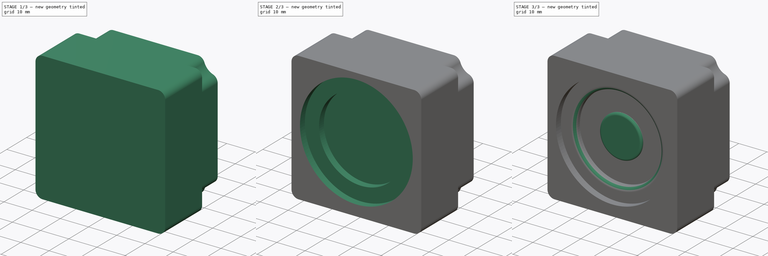
[diagram: build sequence overview — one tinted view per stage of 3, left to right]
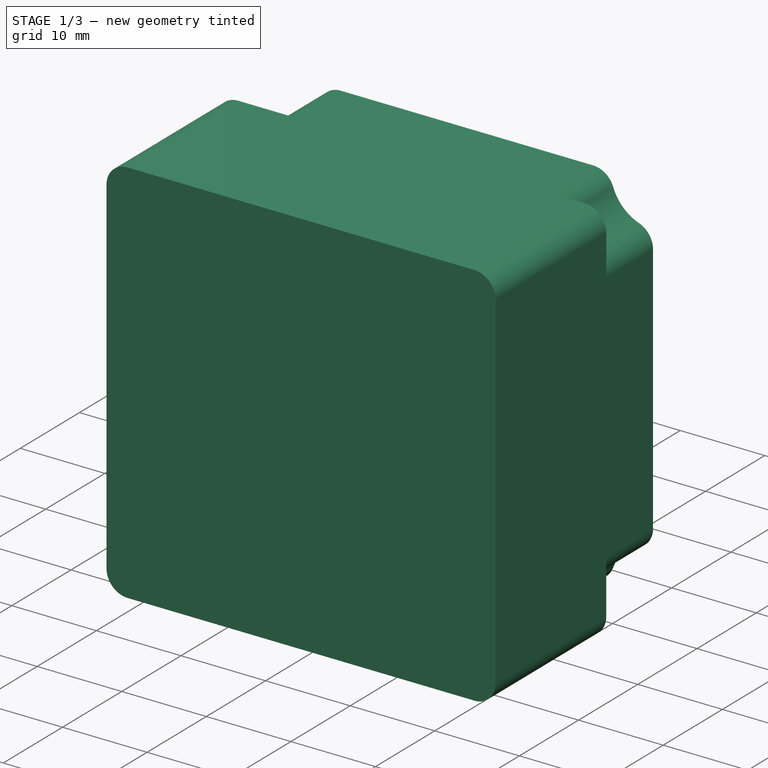
[diagram: stage 1 of 3 — iso view after this stage's code; geometry added in this stage tinted green]
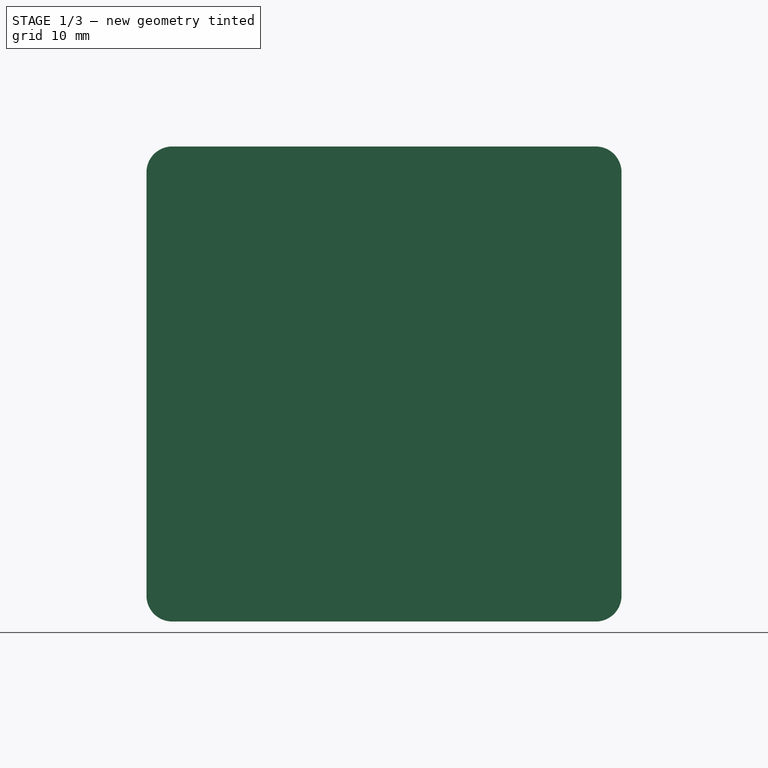
[diagram: stage 1 of 3 — front view after this stage's code; geometry added in this stage tinted green]
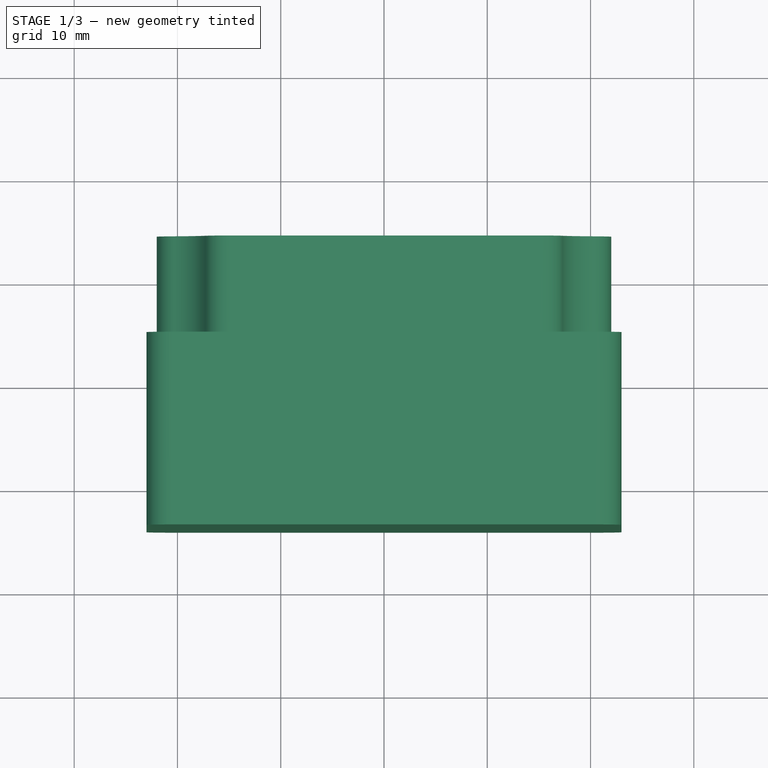
[diagram: stage 1 of 3 — top view after this stage's code; geometry added in this stage tinted green]
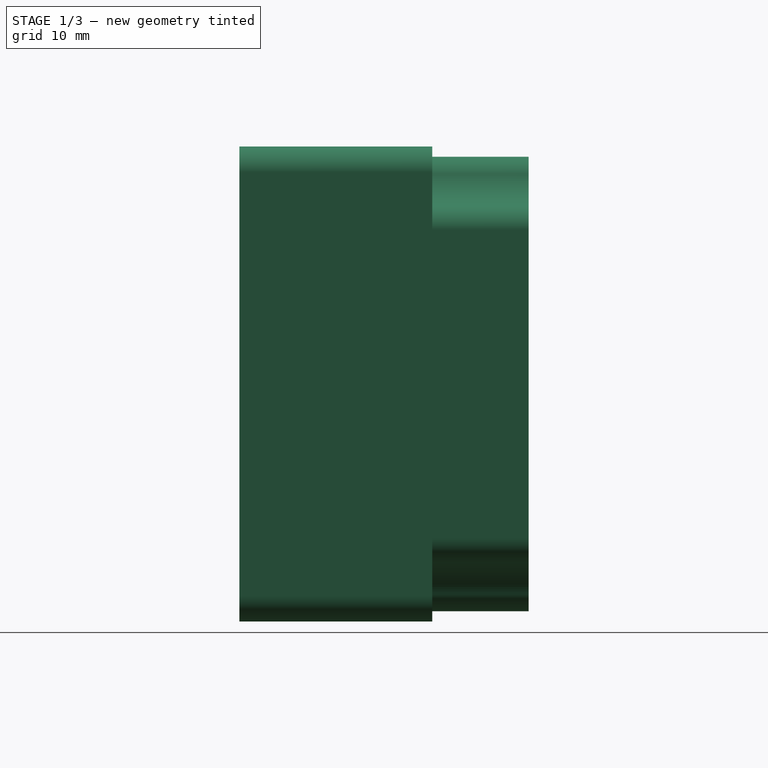
[diagram: stage 1 of 3 — right view after this stage's code; geometry added in this stage tinted green]
FCSTD DOCUMENT  (FreeCAD 1.0R39109 (Git))
Label: mini_speaker
License: All rights reserved
LicenseURL: http://en.wikipedia.org/wiki/All_rights_reserved
objects: Sketcher::SketchObject×5, PartDesign::Pocket×3, PartDesign::Fillet×3, PartDesign::Pad×2, PartDesign::Body×1
note: 35 computed .brp shape members not serialized (recipe doc carries the construction recipe); baked Part::Feature solids carry a one-line shape summary decoded from their .brp

FEATURE [Sketcher::SketchObject] Sketch
  ArcFitTolerance = 1e-06
  AttachmentSupport = -> [XY_Plane]
  FullyConstrained = true
  MakeInternals = false
  MapMode = 5
  sketch-geometry (5):
    g0: LineSegment StartX=-23 StartY=14 StartZ=0 EndX=-23 EndY=-14 EndZ=0
    g1: LineSegment StartX=-23 StartY=-14 StartZ=0 EndX=23 EndY=-14 EndZ=0
    g2: LineSegment StartX=23 StartY=-14 StartZ=0 EndX=23 EndY=14 EndZ=0
    g3: LineSegment StartX=23 StartY=14 StartZ=0 EndX=-23 EndY=14 EndZ=0
    g4: GeomPoint [constr] X=0 Y=0 Z=0
  constraints (12):
    c: Coincident(g0,g1)
    c: Coincident(g1,g2)
    c: Coincident(g2,g3)
    c: Coincident(g3,g0)
    c: Vertical(g0)
    c: Vertical(g2)
    c: Horizontal(g1)
    c: Horizontal(g3)
    c: Symmetric(g2,g0,g4)
    c: Coincident(g4,g-1)
    c: DistanceY(g2,g2) = 28
    c: DistanceX(g1,g1) = 46
FEATURE [PartDesign::Pad] Pad  label="BasePad"
  Direction = (0,0,1)
  Length = 46
  Length2 = 10
  Profile = -> Sketch
  ReferenceAxis = -> Sketch [N_Axis]
  Refine = true
  Suppressed = false
  Type = 0
FEATURE [Sketcher::SketchObject] Sketch001
  ArcFitTolerance = 1e-06
  AttachmentSupport = -> [Pad]
  ExternalGeometry = -> [Pad]
  FullyConstrained = true
  MakeInternals = false
  MapMode = 5
  Placement = pos=(0,14,0) rot=(0,0.707107,0.707107;3.14159rad)
  sketch-geometry (16):
    g0: LineSegment StartX=-22 StartY=40 StartZ=0 EndX=-22 EndY=6 EndZ=0
    g1: ArcOfCircle CenterX=-22 CenterY=1 CenterZ=0 NormalX=0 NormalY=0 NormalZ=1 AngleXU=0 Radius=5 StartAngle=6e-16 EndAngle=1.5708
    g2: LineSegment StartX=-17 StartY=1 StartZ=0 EndX=17 EndY=1 EndZ=0
    g3: ArcOfCircle CenterX=22 CenterY=1 CenterZ=0 NormalX=0 NormalY=0 NormalZ=1 AngleXU=0 Radius=5 StartAngle=1.5708 EndAngle=3.14159
    g4: LineSegment StartX=22 StartY=6 StartZ=0 EndX=22 EndY=40 EndZ=0
    g5: ArcOfCircle CenterX=22 CenterY=45 CenterZ=0 NormalX=0 NormalY=0 NormalZ=1 AngleXU=0 Radius=5 StartAngle=3.14159 EndAngle=4.71239
    g6: LineSegment StartX=17 StartY=45 StartZ=0 EndX=-17 EndY=45 EndZ=0
    g7: ArcOfCircle CenterX=-22 CenterY=45 CenterZ=0 NormalX=0 NormalY=0 NormalZ=1 AngleXU=0 Radius=5 StartAngle=4.71239 EndAngle=6.28319
    g8: GeomPoint X=0 Y=23 Z=0
    g9: GeomPoint X=22 Y=23 Z=0
    g10: GeomPoint X=23 Y=23 Z=0
    g11: LineSegment StartX=-23 StartY=46 StartZ=0 EndX=-23 EndY=0 EndZ=0
    g12: LineSegment StartX=-23 StartY=0 StartZ=0 EndX=23 EndY=0 EndZ=0
    g13: LineSegment StartX=23 StartY=0 StartZ=0 EndX=23 EndY=46 EndZ=0
    g14: LineSegment StartX=23 StartY=46 StartZ=0 EndX=-23 EndY=46 EndZ=0
    g15: GeomPoint [constr] X=0 Y=23 Z=0
  constraints (37):
    c: Vertical(g0)
    c: Perpendicular(g0,g1) = 4.71239
    c: Coincident(g1,g2)
    c: Perpendicular(g2,g3) = 4.71239
    c: Coincident(g3,g4)
    c: Vertical(g4)
    c: Perpendicular(g4,g5) = 4.71239
    c: Coincident(g5,g6)
    c: Horizontal(g6)
    c: Perpendicular(g6,g7) = 4.71239
    c: Coincident(g7,g0)
    c: Equal(g7,g5)
    c: Equal(g5,g3)
    c: Equal(g3,g1)
    c: Symmetric(g1,g2,g-2)
    c: PointOnObject(g8,g-2)
    c: Symmetric(g4,g4,g9)
    c: Horizontal(g9,g8)
    c: Symmetric(g3,g7,g8)
    c: Equal(g2,g4)
    c: Equal(g4,g6)
    c: Equal(g6,g0)
    c: DistanceX(g3,g-3) = 1
    c: Symmetric(g-3,g-3,g10)
    c: Horizontal(g10,g8)
    c: Radius(g5) = 5
    c: Coincident(g11,g12)
    c: Coincident(g12,g13)
    c: Coincident(g13,g14)
    c: Coincident(g14,g11)
    c: Vertical(g11)
    c: Vertical(g13)
    c: Horizontal(g12)
    c: Horizontal(g14)
    c: Symmetric(g13,g11,g15)
    c: Coincident(g15,g8)
    c: Coincident(g12,g-3)
FEATURE [PartDesign::Pocket] Pocket  label="BackPocket"
  BaseFeature = -> Pad
  Direction = (0,-1,2e-16)
  Length = 9.33333
  Length2 = 5
  Profile = -> Sketch001
  ReferenceAxis = -> Sketch001 [N_Axis]
  Refine = true
  Suppressed = false
  Type = 0
FEATURE [PartDesign::Fillet] Fillet  label="ContourFillets"
  Base = -> Pocket [Edge11,Edge3,Edge1,Edge6,Edge28,Edge26,Edge24,Edge22,Edge21,Edge34,Edge32,Edge30]
  BaseFeature = -> Pocket
  Radius = 2.5
  Refine = true
  SupportTransform = false
  Suppressed = false
  UseAllEdges = false
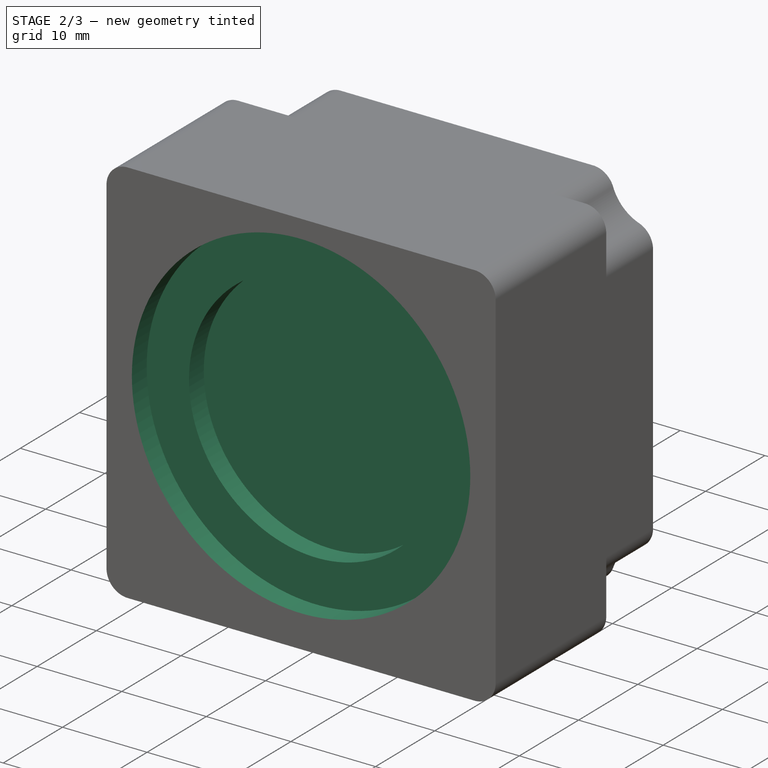
[diagram: stage 2 of 3 — iso view after this stage's code; geometry added in this stage tinted green]
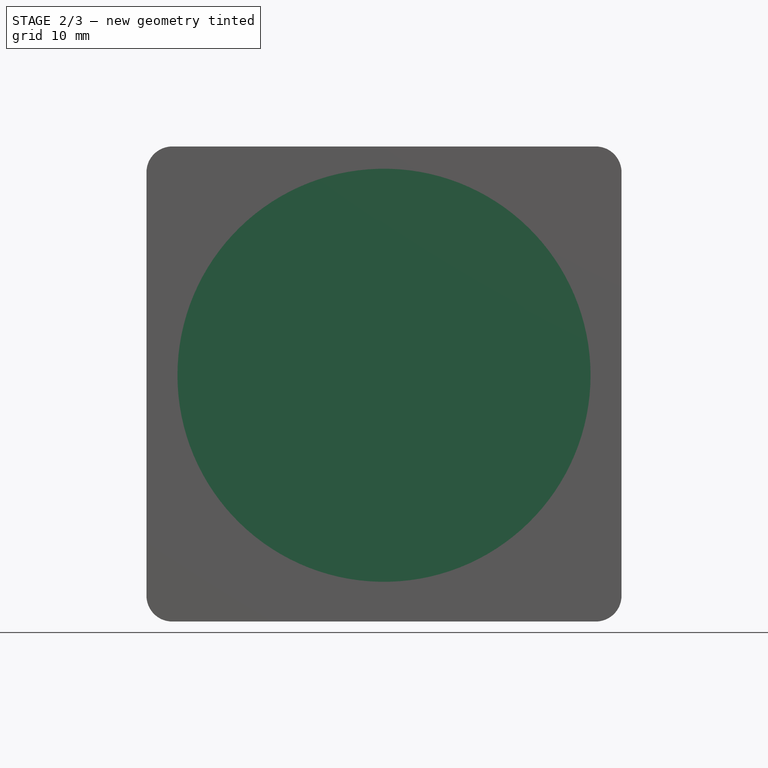
[diagram: stage 2 of 3 — front view after this stage's code; geometry added in this stage tinted green]
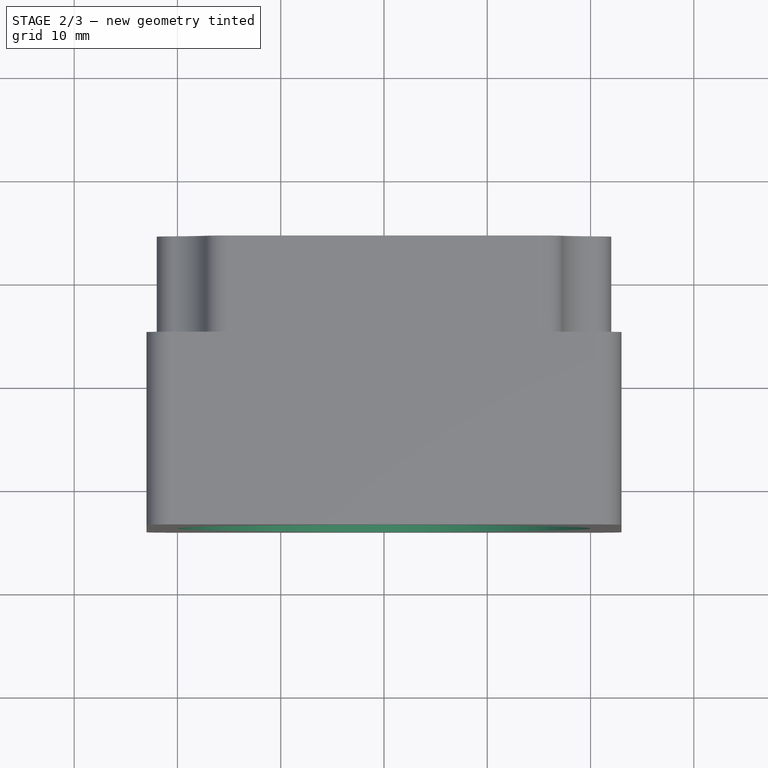
[diagram: stage 2 of 3 — top view after this stage's code; geometry added in this stage tinted green]
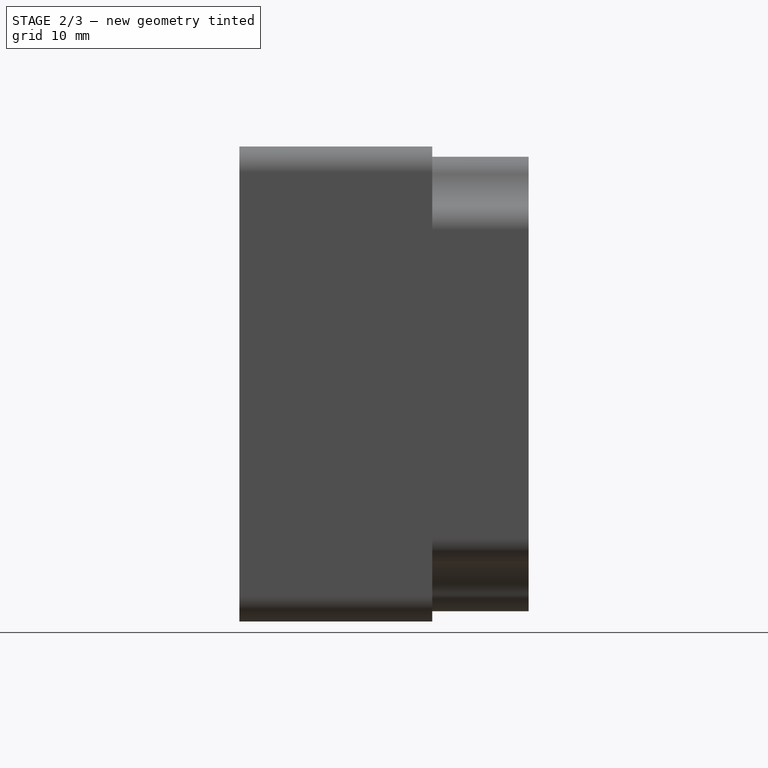
[diagram: stage 2 of 3 — right view after this stage's code; geometry added in this stage tinted green]
FEATURE [Sketcher::SketchObject] Sketch002
  ArcFitTolerance = 1e-06
  AttachmentSupport = -> [Fillet]
  ExternalGeometry = -> [Fillet]
  FullyConstrained = false
  MakeInternals = false
  MapMode = 5
  Placement = pos=(0,-14,0) rot=(1,0,0;1.5708rad)
  sketch-geometry (1):
    g0: Circle CenterX=0 CenterY=23.8461 CenterZ=0 NormalX=0 NormalY=0 NormalZ=1 AngleXU=0 Radius=20
  constraints (2):
    c: PointOnObject(g0,g-2)
    c: Radius(g0) = 20
FEATURE [PartDesign::Pocket] Pocket001  label="BiggerCircPocket"
  BaseFeature = -> Fillet
  Direction = (0,1,-2e-16)
  Length = 2.5
  Length2 = 5
  Profile = -> Sketch002
  ReferenceAxis = -> Sketch002 [N_Axis]
  Refine = true
  Suppressed = false
  Type = 0
FEATURE [Sketcher::SketchObject] Sketch003
  ArcFitTolerance = 1e-06
  AttachmentSupport = -> [Pocket001]
  ExternalGeometry = -> [Pocket001]
  FullyConstrained = true
  MakeInternals = false
  MapMode = 5
  Placement = pos=(0,-11.5,0) rot=(1,0,0;1.5708rad)
  sketch-geometry (1):
    g0: Circle CenterX=0 CenterY=23.8461 CenterZ=0 NormalX=0 NormalY=0 NormalZ=1 AngleXU=0 Radius=15
  constraints (2):
    c: Coincident(g-3,g0)
    c: Radius(g0) = 15
FEATURE [PartDesign::Pocket] Pocket002  label="MediumCircPocket"
  BaseFeature = -> Pocket001
  Direction = (0,1,-2e-16)
  Length = 2.5
  Length2 = 5
  Profile = -> Sketch003
  ReferenceAxis = -> Sketch003 [N_Axis]
  Refine = true
  Suppressed = false
  Type = 0
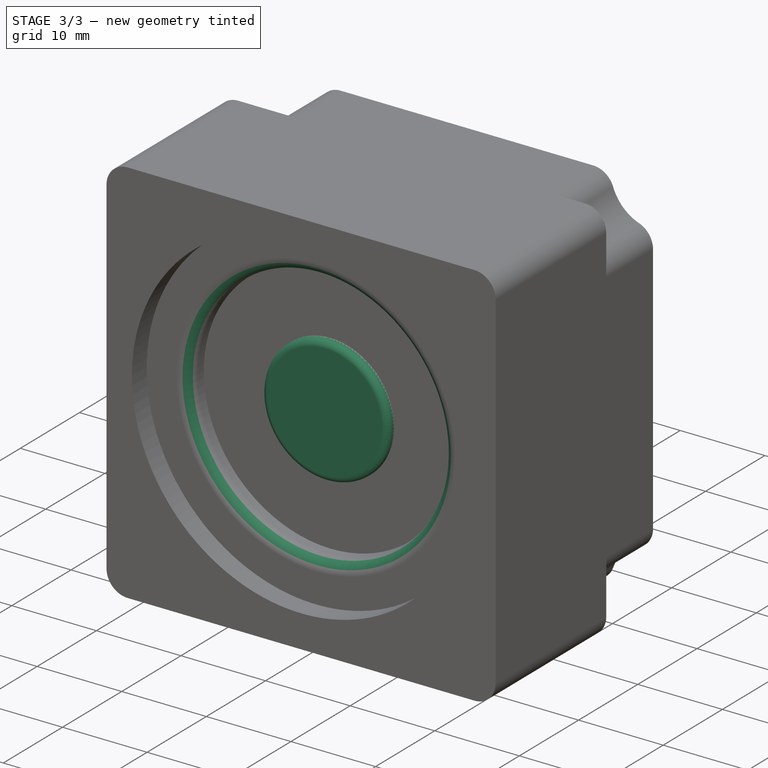
[diagram: stage 3 of 3 — iso view after this stage's code; geometry added in this stage tinted green]
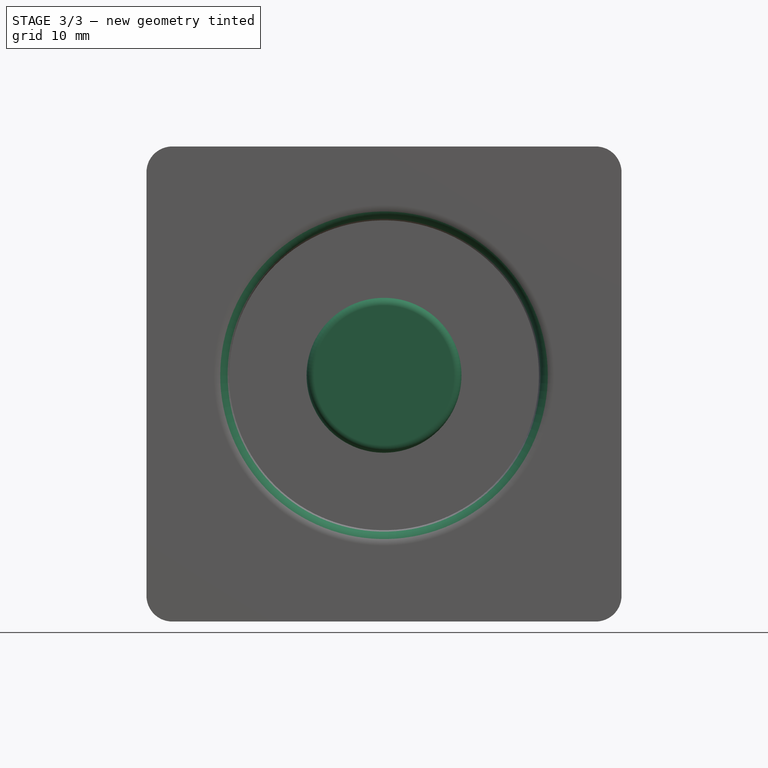
[diagram: stage 3 of 3 — front view after this stage's code; geometry added in this stage tinted green]
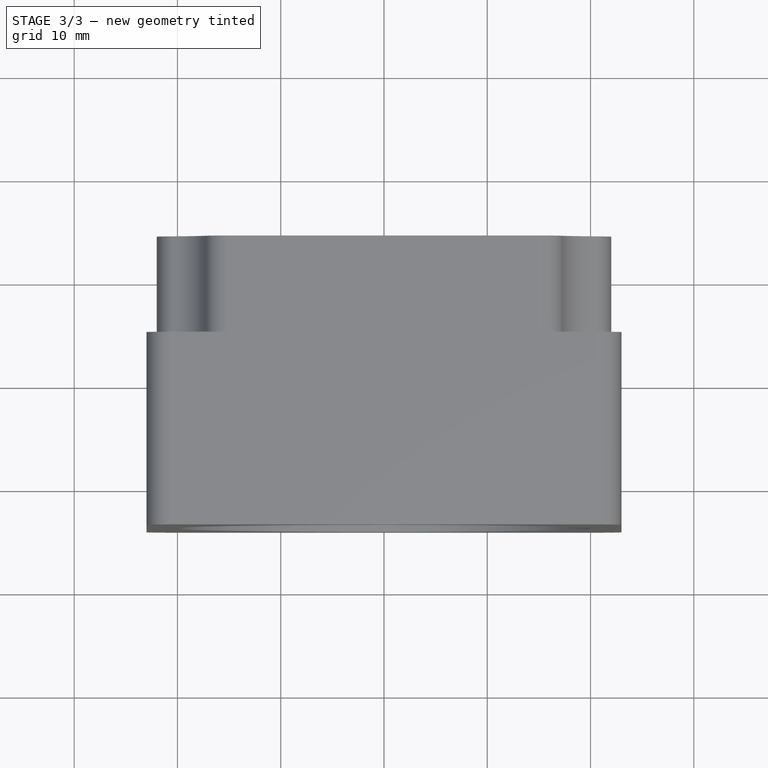
[diagram: stage 3 of 3 — top view after this stage's code; geometry added in this stage tinted green]
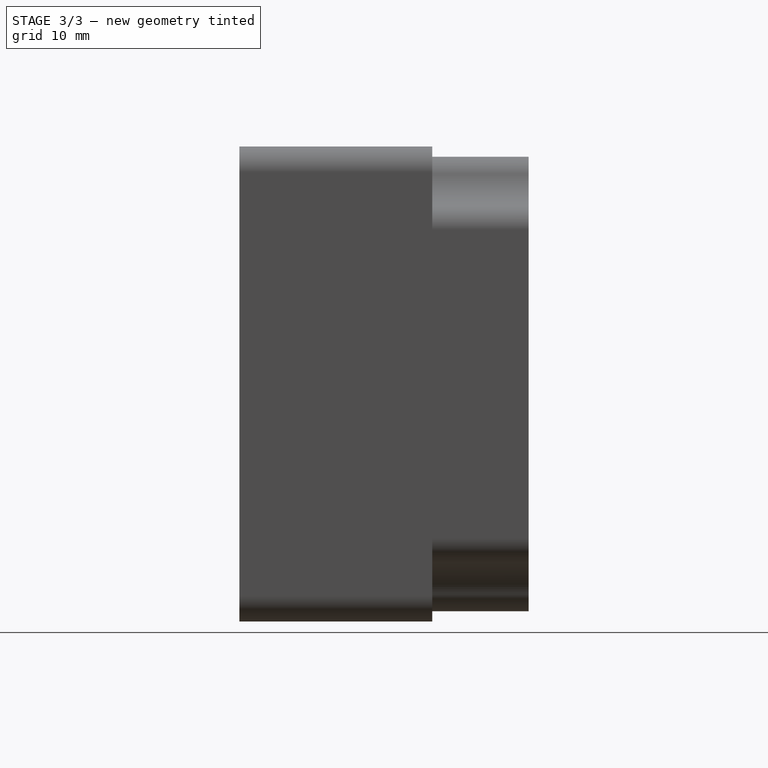
[diagram: stage 3 of 3 — right view after this stage's code; geometry added in this stage tinted green]
FEATURE [Sketcher::SketchObject] Sketch004
  ArcFitTolerance = 1e-06
  AttachmentSupport = -> [Pocket002]
  ExternalGeometry = -> [Pocket002]
  FullyConstrained = true
  MakeInternals = false
  MapMode = 5
  Placement = pos=(0,-9,2.4e-15) rot=(1,0,0;1.5708rad)
  sketch-geometry (1):
    g0: Circle CenterX=0 CenterY=23.8461 CenterZ=0 NormalX=0 NormalY=0 NormalZ=1 AngleXU=0 Radius=7.5
  constraints (2):
    c: Coincident(g-3,g0)
    c: Radius(g0) = 7.5
FEATURE [PartDesign::Pad] Pad001  label="SmallerCircPad"
  BaseFeature = -> Pocket002
  Direction = (0,-1,2e-16)
  Length = 1
  Length2 = 10
  Profile = -> Sketch004
  ReferenceAxis = -> Sketch004 [N_Axis]
  Refine = true
  Suppressed = false
  Type = 0
FEATURE [PartDesign::Fillet] Fillet001  label="MeddiumCircFillet"
  Base = -> Pad001 [Edge76]
  BaseFeature = -> Pad001
  Radius = 1.5
  Refine = true
  SupportTransform = false
  Suppressed = false
  UseAllEdges = false
FEATURE [PartDesign::Fillet] Fillet002  label="SmallerCircFillet"
  Base = -> Fillet001 [Edge35]
  BaseFeature = -> Fillet001
  Radius = 0.75
  Refine = true
  SupportTransform = false
  Suppressed = false
  UseAllEdges = false
FEATURE [PartDesign::Body] Body  label="mini_speaker"
  AllowCompound = false
  Group = -> [Sketch,Pad,Sketch001,Pocket,Fillet,Sketch002,Pocket001,Sketch003,Pocket002,Sketch004,Pad001,Fillet001,Fillet002]
  Origin = -> Origin
  Tip = -> Fillet002
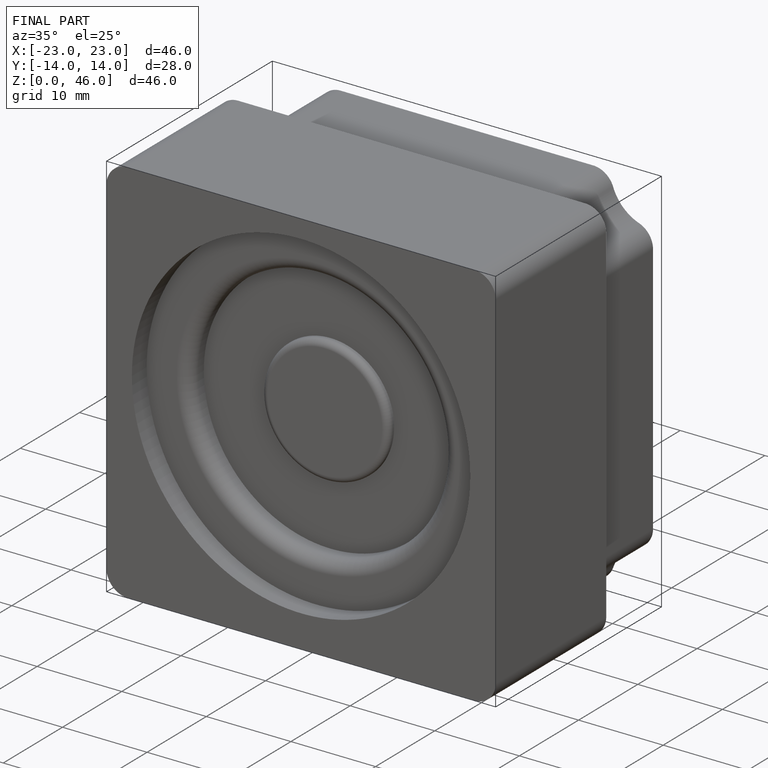
[diagram: finished part — iso view with bounding-box wireframe]
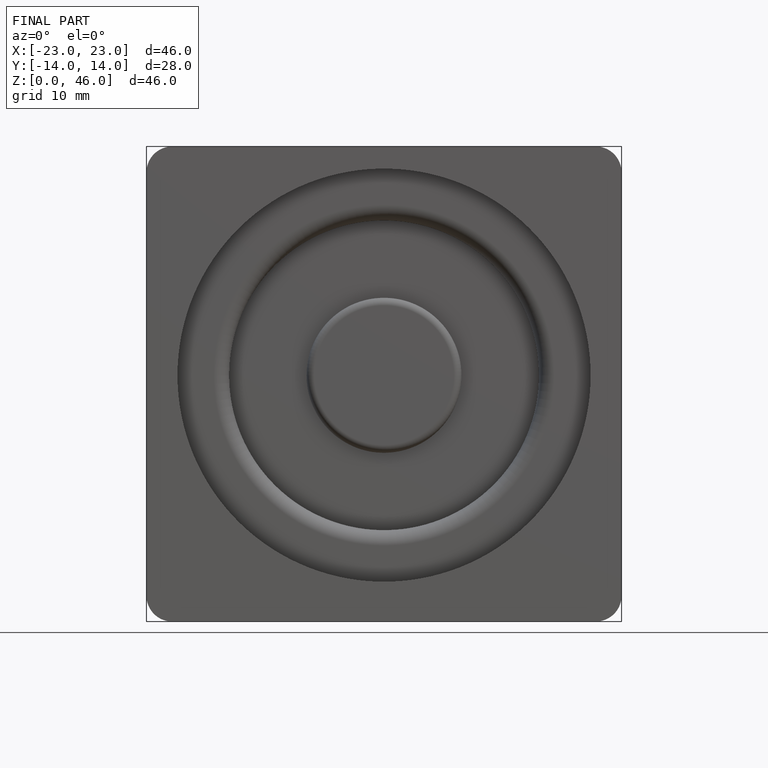
[diagram: finished part — front view with bounding-box wireframe]
